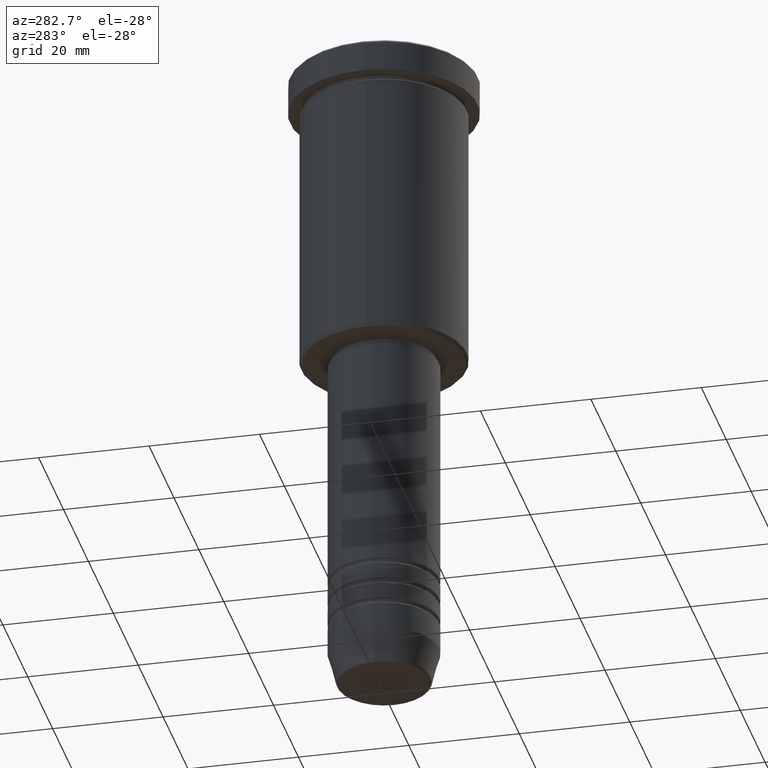
[diagram: clean part render]
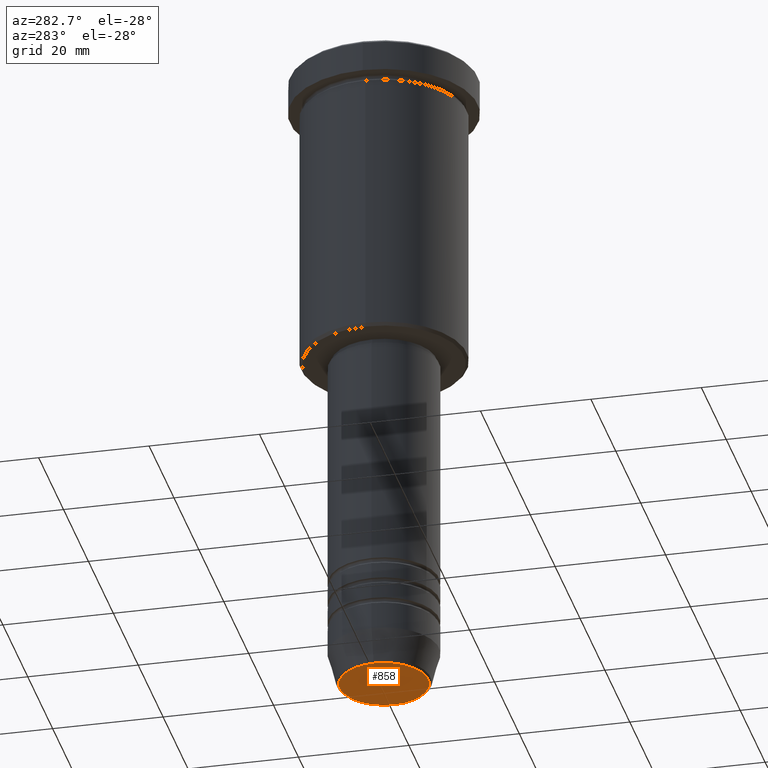
[diagram: same view with one face highlighted and labeled with its STEP entity id]
A machine part, auxiliary view. The second image highlights one B-rep face of the part: STEP entity #858.
In plain terms, the highlighted planar face has unit normal (0, -0, 1).
Its self-contained STEP definition (entity closure, byte-faithful):
#6 = CIRCLE ( 'NONE', #666, 8.008641351423779753 ) ;
#42 = DIRECTION ( 'NONE',  ( 0.000000000000000000, 0.000000000000000000, -1.000000000000000000 ) ) ;
#64 = ORIENTED_EDGE ( 'NONE', *, *, #771, .T. ) ;
#136 = CARTESIAN_POINT ( 'NONE',  ( -8.008641351423779753, 1.010348648938493172E-15, -120.0000000000000000 ) ) ;
#141 = EDGE_LOOP ( 'NONE', ( #580, #64 ) ) ;
#159 = FACE_OUTER_BOUND ( 'NONE', #141, .T. ) ;
#265 = CARTESIAN_POINT ( 'NONE',  ( 0.000000000000000000, 0.000000000000000000, -120.0000000000000000 ) ) ;
#268 = PLANE ( 'NONE',  #403 ) ;
#277 = EDGE_CURVE ( 'NONE', #772, #1120, #6, .T. ) ;
#308 = DIRECTION ( 'NONE',  ( 0.000000000000000000, 0.000000000000000000, -1.000000000000000000 ) ) ;
#403 = AXIS2_PLACEMENT_3D ( 'NONE', #265, #783, #805 ) ;
#580 = ORIENTED_EDGE ( 'NONE', *, *, #277, .T. ) ;
#602 = CARTESIAN_POINT ( 'NONE',  ( 8.008641351423779753, 0.000000000000000000, -120.0000000000000000 ) ) ;
#666 = AXIS2_PLACEMENT_3D ( 'NONE', #769, #42, #672 ) ;
#672 = DIRECTION ( 'NONE',  ( 1.000000000000000000, 0.000000000000000000, 0.000000000000000000 ) ) ;
#693 = CARTESIAN_POINT ( 'NONE',  ( 0.000000000000000000, 0.000000000000000000, -120.0000000000000000 ) ) ;
#769 = CARTESIAN_POINT ( 'NONE',  ( 0.000000000000000000, 0.000000000000000000, -120.0000000000000000 ) ) ;
#771 = EDGE_CURVE ( 'NONE', #1120, #772, #923, .T. ) ;
#772 = VERTEX_POINT ( 'NONE', #602 ) ;
#783 = DIRECTION ( 'NONE',  ( 0.000000000000000000, -0.000000000000000000, 1.000000000000000000 ) ) ;
#805 = DIRECTION ( 'NONE',  ( 1.000000000000000000, 0.000000000000000000, 0.000000000000000000 ) ) ;
#858 = ADVANCED_FACE ( 'NONE', ( #159 ), #268, .F. ) ;
#923 = CIRCLE ( 'NONE', #1054, 8.008641351423779753 ) ;
#1054 = AXIS2_PLACEMENT_3D ( 'NONE', #693, #308, #1057 ) ;
#1057 = DIRECTION ( 'NONE',  ( 1.000000000000000000, 0.000000000000000000, 0.000000000000000000 ) ) ;
#1120 = VERTEX_POINT ( 'NONE', #136 ) ;